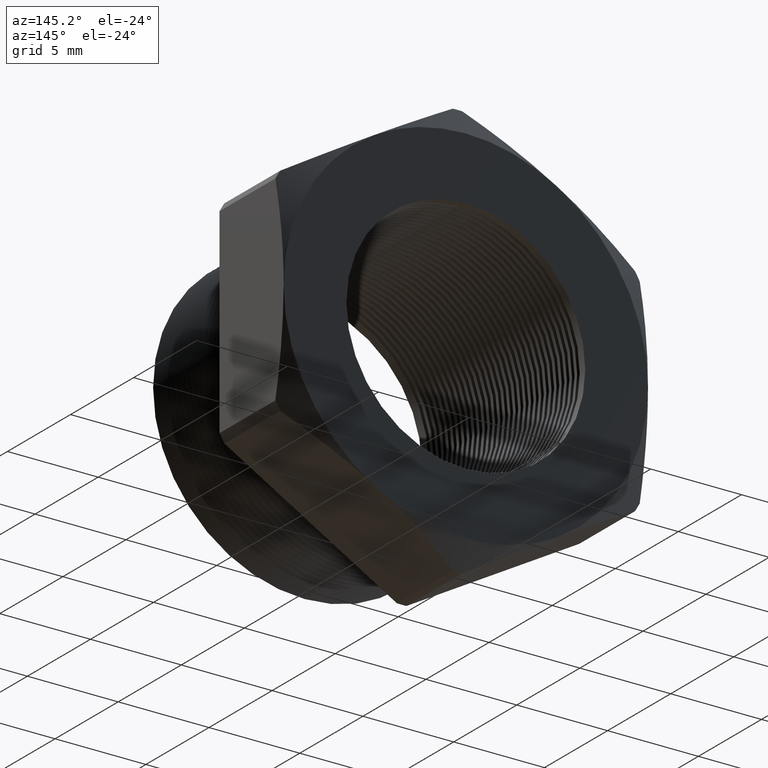
[diagram: clean part render]
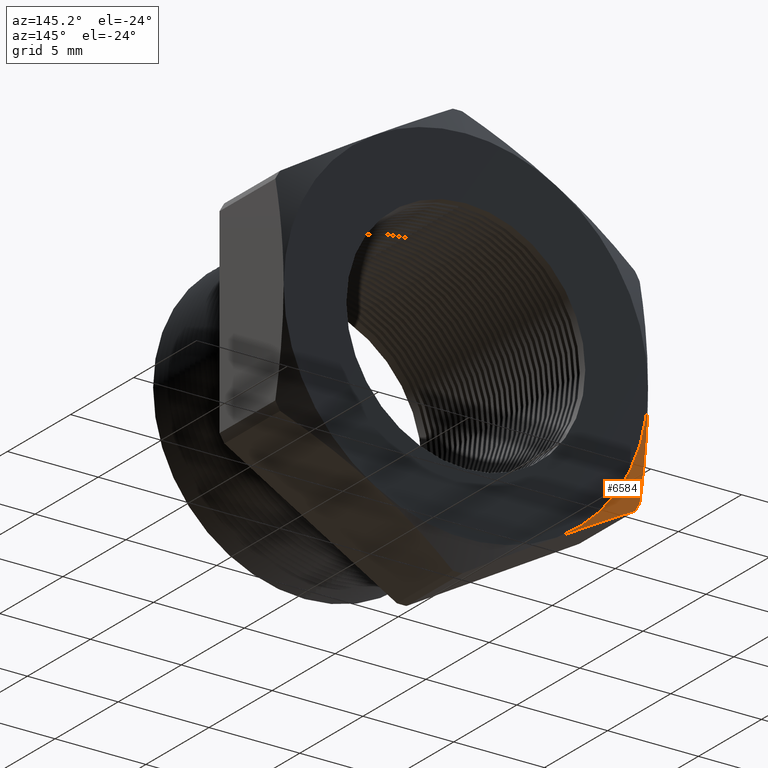
[diagram: same view with one face highlighted and labeled with its STEP entity id]
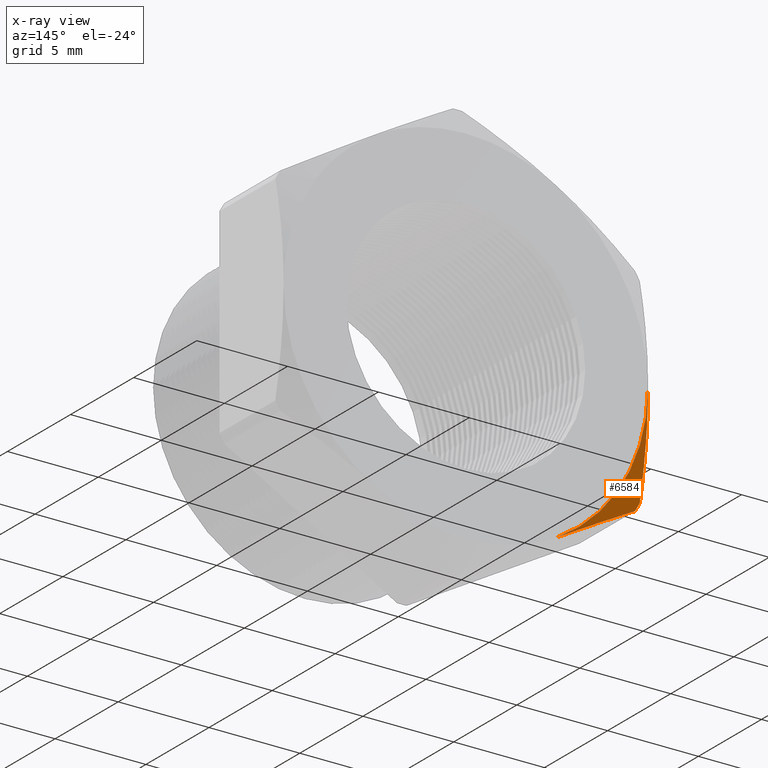
[diagram: x-ray of the same camera — body ghosted, the highlighted face saturated]
A machine part, auxiliary view. The second image highlights one B-rep face of the part: STEP entity #6584.
The next image is the same camera in x-ray: the body ghosted, the highlighted face saturated — about 0% of this face is hidden behind the body in this view.
In plain terms, the highlighted conical surface has half-angle 65 deg.
Its self-contained STEP definition (entity closure, byte-faithful):
#1692 = CARTESIAN_POINT ( 'NONE',  ( -0.1974999999999999800, 0.4075548905829479200, -0.3420800344948531400 ) ) ;
#1760 = DIRECTION ( 'NONE',  ( 0.0000000000000000000, 0.0000000000000000000, 1.000000000000000000 ) ) ;
#1761 = DIRECTION ( 'NONE',  ( 0.0000000000000000000, 1.000000000000000000, 0.0000000000000000000 ) ) ;
#1762 = CARTESIAN_POINT ( 'NONE',  ( 0.0000000000000000000, 0.4075548905829479200, 0.0000000000000000000 ) ) ;
#1763 = AXIS2_PLACEMENT_3D ( 'NONE', #1762, #1761, #1760 ) ;
#1764 = CIRCLE ( 'NONE', #1763, 0.3949999999999999600 ) ;
#1820 = CARTESIAN_POINT ( 'NONE',  ( -0.3949999999999999600, 0.4075548905829479200, 0.0000000000000000000 ) ) ;
#1853 = CARTESIAN_POINT ( 'NONE',  ( -0.3847399997329630800, 0.3817680770869766300, -0.2339769702459614000 ) ) ;
#1854 = DIRECTION ( 'NONE',  ( 0.0000000000000000000, 0.0000000000000000000, -1.000000000000000000 ) ) ;
#1855 = DIRECTION ( 'NONE',  ( 0.0000000000000000000, -1.000000000000000000, 0.0000000000000000000 ) ) ;
#1856 = CARTESIAN_POINT ( 'NONE',  ( 0.0000000000000000000, 0.3817680770869766300, 0.0000000000000000000 ) ) ;
#1857 = AXIS2_PLACEMENT_3D ( 'NONE', #1856, #1855, #1854 ) ;
#1858 = CIRCLE ( 'NONE', #1857, 0.4502999999999999800 ) ;
#1859 = CARTESIAN_POINT ( 'NONE',  ( -0.3949999999999999600, 0.3817680770869766300, -0.2162061284977833100 ) ) ;
#1933 = CARTESIAN_POINT ( 'NONE',  ( -0.1974999999999999800, 0.4075548905829479200, -0.3420800344948531400 ) ) ;
#1934 = CARTESIAN_POINT ( 'NONE',  ( -0.2289182622552070300, 0.4075548905829479700, -0.3239406923243391400 ) ) ;
#1935 = CARTESIAN_POINT ( 'NONE',  ( -0.2602199223343858400, 0.4051865378565923100, -0.3058686704515429800 ) ) ;
#1936 = CARTESIAN_POINT ( 'NONE',  ( -0.3226184986981740500, 0.3962912005447679100, -0.2698428355908605300 ) ) ;
#1937 = CARTESIAN_POINT ( 'NONE',  ( -0.3537166105170322400, 0.3897884989263424300, -0.2518883323609535400 ) ) ;
#1938 = CARTESIAN_POINT ( 'NONE',  ( -0.3847399997329630800, 0.3817680770869766300, -0.2339769702459614000 ) ) ;
#1940 = B_SPLINE_CURVE_WITH_KNOTS ( 'NONE', 3,
 ( #1938, #1937, #1936, #1935, #1934, #1933 ),
 .UNSPECIFIED., .F., .F.,
 ( 4, 2, 4 ),
 ( 2.335025902589511500E-007, 0.002760212844509916600, 0.005520192186429574200 ),
 .UNSPECIFIED. ) ;
#1942 = CARTESIAN_POINT ( 'NONE',  ( -0.3949999999999999600, 0.4052021354330028700, -0.07226365342510569800 ) ) ;
#1943 = CARTESIAN_POINT ( 'NONE',  ( -0.3949999999999999600, 0.4075548905829479200, -0.03615071496385630100 ) ) ;
#1944 = CARTESIAN_POINT ( 'NONE',  ( -0.3949999999999999600, 0.4075548905829479200, 0.0000000000000000000 ) ) ;
#1945 = B_SPLINE_CURVE_WITH_KNOTS ( 'NONE', 3,
 ( #1944, #1943, #1942, #1998, #1997, #1996 ),
 .UNSPECIFIED., .F., .F.,
 ( 4, 2, 4 ),
 ( 0.02811047610233889300, 0.03085359037390535800, 0.03359670464547182000 ),
 .UNSPECIFIED. ) ;
#1996 = CARTESIAN_POINT ( 'NONE',  ( -0.3949999999999999600, 0.3817680770869766300, -0.2162061284977833100 ) ) ;
#1997 = CARTESIAN_POINT ( 'NONE',  ( -0.3950000000000000200, 0.3897411411158606700, -0.1805949250355349800 ) ) ;
#1998 = CARTESIAN_POINT ( 'NONE',  ( -0.3949999999999999100, 0.3963016774528892400, -0.1444221750803203200 ) ) ;
#3467 = CARTESIAN_POINT ( 'NONE',  ( 0.0000000000000000000, 0.4075548905829479200, 0.0000000000000000000 ) ) ;
#3468 = CONICAL_SURFACE ( 'NONE', #3523, 0.3949999999999999600, 1.134464013796316700 ) ;
#3473 = FACE_OUTER_BOUND ( 'NONE', #6585, .T. ) ;
#3521 = DIRECTION ( 'NONE',  ( 0.0000000000000000000, 0.0000000000000000000, 1.000000000000000000 ) ) ;
#3522 = DIRECTION ( 'NONE',  ( 0.0000000000000000000, -1.000000000000000000, 0.0000000000000000000 ) ) ;
#3523 = AXIS2_PLACEMENT_3D ( 'NONE', #3467, #3522, #3521 ) ;
#5451 = VERTEX_POINT ( 'NONE', #1692 ) ;
#5508 = EDGE_CURVE ( 'NONE', #5451, #5509, #1764, .T. ) ;
#5509 = VERTEX_POINT ( 'NONE', #1820 ) ;
#5551 = VERTEX_POINT ( 'NONE', #1859 ) ;
#5553 = EDGE_CURVE ( 'NONE', #5551, #5554, #1858, .T. ) ;
#5554 = VERTEX_POINT ( 'NONE', #1853 ) ;
#5572 = EDGE_CURVE ( 'NONE', #5554, #5451, #1940, .T. ) ;
#5590 = EDGE_CURVE ( 'NONE', #5509, #5551, #1945, .T. ) ;
#6584 = ADVANCED_FACE ( 'NONE', ( #3473 ), #3468, .T. ) ;
#6585 = EDGE_LOOP ( 'NONE', ( #6586, #6587, #6588, #6589 ) ) ;
#6586 = ORIENTED_EDGE ( 'NONE', *, *, #5508, .F. ) ;
#6587 = ORIENTED_EDGE ( 'NONE', *, *, #5572, .F. ) ;
#6588 = ORIENTED_EDGE ( 'NONE', *, *, #5553, .F. ) ;
#6589 = ORIENTED_EDGE ( 'NONE', *, *, #5590, .F. ) ;